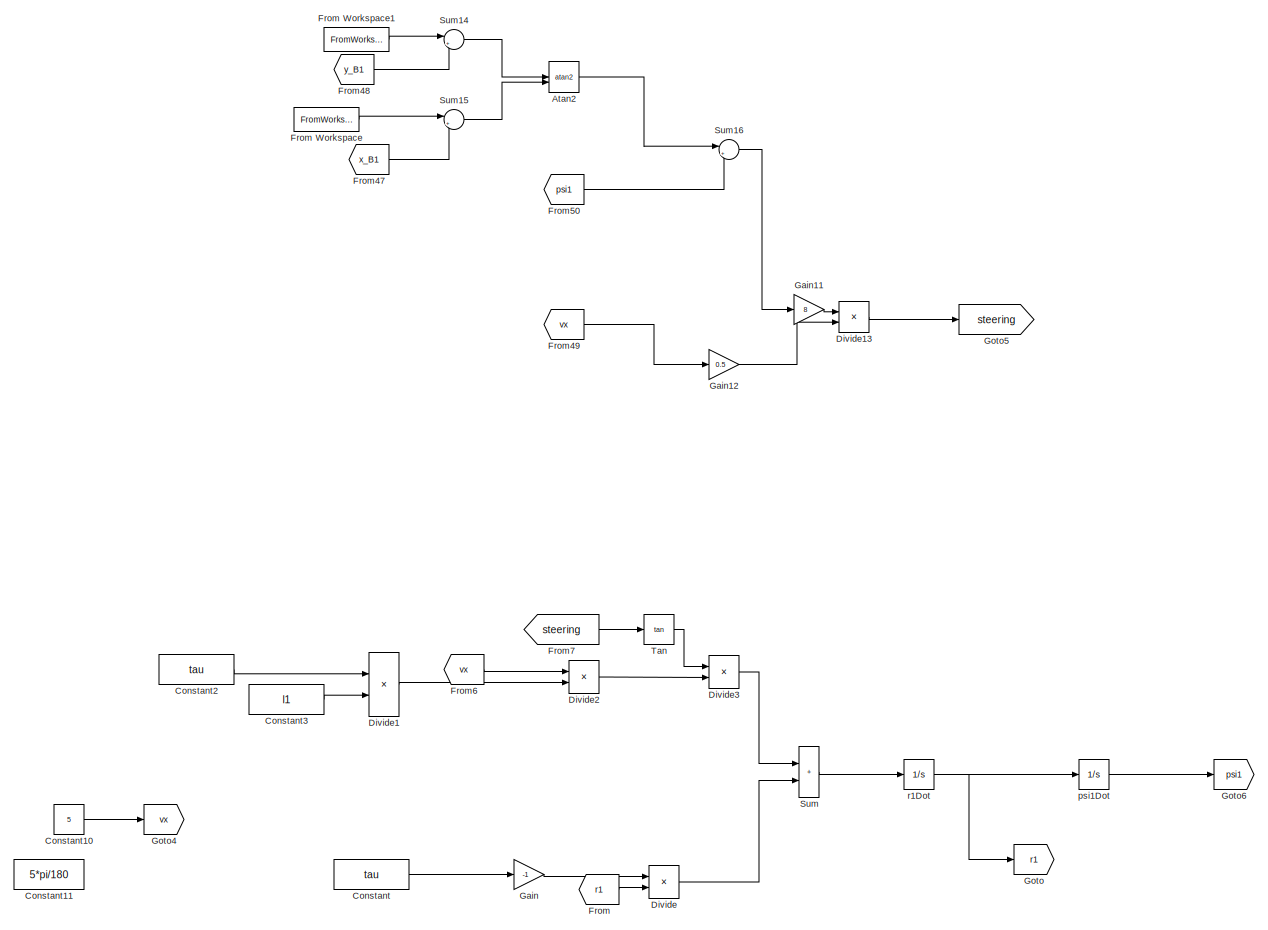
[diagram: root canvas - part 1/4, top left region]
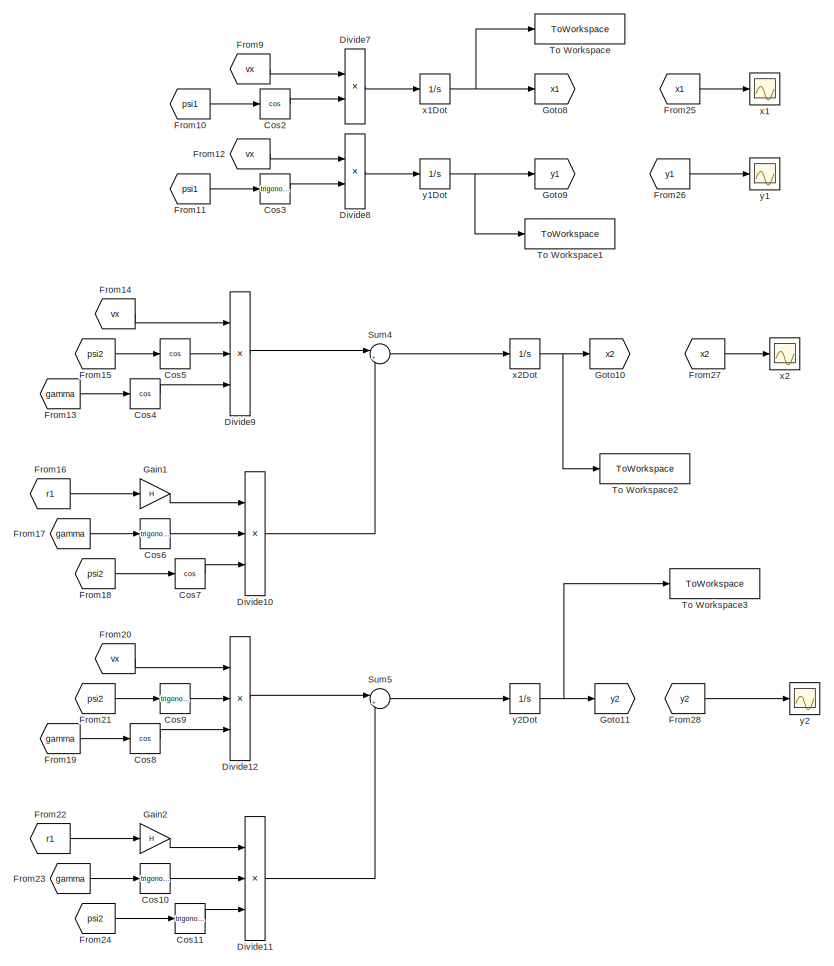
[diagram: root canvas - part 2/4, bottom center region]
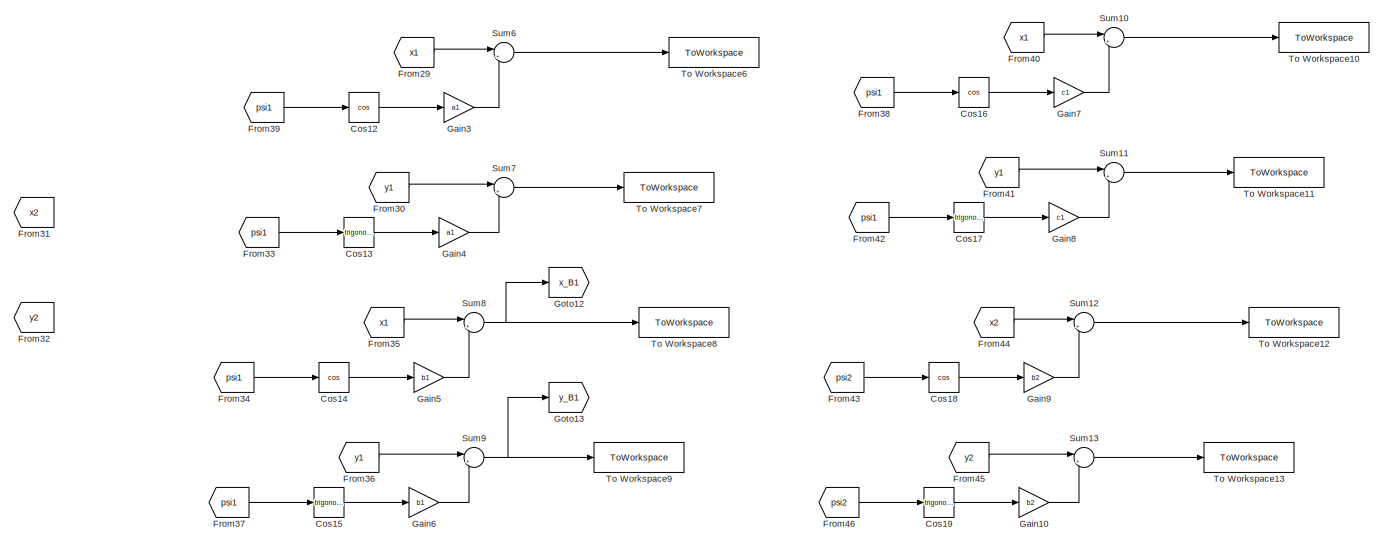
[diagram: root canvas - part 3/4, middle right region]
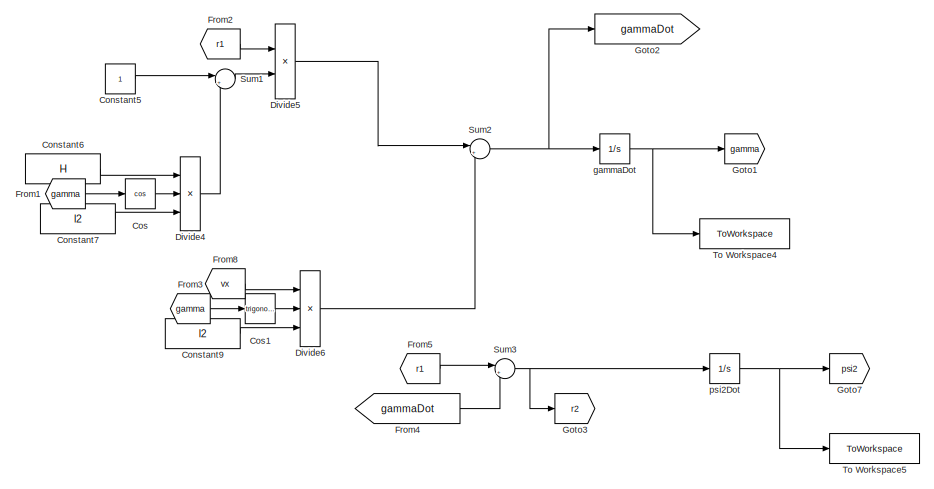
[diagram: root canvas - part 4/4, bottom left region]
MODEL slx_20f8e2907a4a
KIND model
CONFIG AbsTol = auto
CONFIG EnableMultiTasking = off
CONFIG FixedStep = 1/200
CONFIG MaxStep = auto
CONFIG MinStep = auto
CONFIG RelTol = 1e-3
CONFIG SampleTimeConstraint = Unconstrained
CONFIG SolverName = ode4
CONFIG StartTime = 0.0
CONFIG StopTime = 40
BLOCK [Trigonometry] Atan2
  Operator = atan2
BLOCK [Constant] Constant
  Value = tau
BLOCK [Constant] Constant10
  Value = 5
BLOCK [Constant] Constant11
  Value = 5*pi/180
BLOCK [Constant] Constant2
  Value = tau
BLOCK [Constant] Constant3
  Value = l1
BLOCK [Constant] Constant5
BLOCK [Constant] Constant6
  Value = H
BLOCK [Constant] Constant7
  Value = l2
BLOCK [Constant] Constant9
  Value = l2
BLOCK [Trigonometry] Cos
  Operator = cos
BLOCK [Trigonometry] Cos1
BLOCK [Trigonometry] Cos10
BLOCK [Trigonometry] Cos11
BLOCK [Trigonometry] Cos12
  Operator = cos
BLOCK [Trigonometry] Cos13
BLOCK [Trigonometry] Cos14
  Operator = cos
BLOCK [Trigonometry] Cos15
BLOCK [Trigonometry] Cos16
  Operator = cos
BLOCK [Trigonometry] Cos17
BLOCK [Trigonometry] Cos18
  Operator = cos
BLOCK [Trigonometry] Cos19
BLOCK [Trigonometry] Cos2
  Operator = cos
BLOCK [Trigonometry] Cos3
BLOCK [Trigonometry] Cos4
  Operator = cos
BLOCK [Trigonometry] Cos5
  Operator = cos
BLOCK [Trigonometry] Cos6
BLOCK [Trigonometry] Cos7
  Operator = cos
BLOCK [Trigonometry] Cos8
  Operator = cos
BLOCK [Trigonometry] Cos9
BLOCK [Product] Divide
  Inputs = /*
BLOCK [Product] Divide1
  Inputs = **
BLOCK [Product] Divide10
  Inputs = ***
BLOCK [Product] Divide11
  Inputs = ***
BLOCK [Product] Divide12
  Inputs = ***
BLOCK [Product] Divide13
  Inputs = */
BLOCK [Product] Divide2
  Inputs = */
BLOCK [Product] Divide3
  Inputs = **
BLOCK [Product] Divide4
  Inputs = **/
BLOCK [Product] Divide5
  Inputs = **
BLOCK [Product] Divide6
  Inputs = **/
BLOCK [Product] Divide7
  Inputs = **
BLOCK [Product] Divide8
  Inputs = **
BLOCK [Product] Divide9
  Inputs = ***
BLOCK [From] From
  GotoTag = r1
BLOCK [FromWorkspace] From Workspace
  VariableName = xSim
BLOCK [FromWorkspace] From Workspace1
  VariableName = ySim
BLOCK [From] From1
  GotoTag = gamma
BLOCK [From] From10
  GotoTag = psi1
BLOCK [From] From11
  GotoTag = psi1
BLOCK [From] From12
  GotoTag = vx
BLOCK [From] From13
  GotoTag = gamma
BLOCK [From] From14
  GotoTag = vx
BLOCK [From] From15
  GotoTag = psi2
BLOCK [From] From16
  GotoTag = r1
BLOCK [From] From17
  GotoTag = gamma
BLOCK [From] From18
  GotoTag = psi2
BLOCK [From] From19
  GotoTag = gamma
BLOCK [From] From2
  GotoTag = r1
BLOCK [From] From20
  GotoTag = vx
BLOCK [From] From21
  GotoTag = psi2
BLOCK [From] From22
  GotoTag = r1
BLOCK [From] From23
  GotoTag = gamma
BLOCK [From] From24
  GotoTag = psi2
BLOCK [From] From25
  GotoTag = x1
BLOCK [From] From26
  GotoTag = y1
BLOCK [From] From27
  GotoTag = x2
BLOCK [From] From28
  GotoTag = y2
BLOCK [From] From29
  GotoTag = x1
BLOCK [From] From3
  GotoTag = gamma
BLOCK [From] From30
  GotoTag = y1
BLOCK [From] From31
  GotoTag = x2
BLOCK [From] From32
  GotoTag = y2
BLOCK [From] From33
  GotoTag = psi1
BLOCK [From] From34
  GotoTag = psi1
BLOCK [From] From35
  GotoTag = x1
BLOCK [From] From36
  GotoTag = y1
BLOCK [From] From37
  GotoTag = psi1
BLOCK [From] From38
  GotoTag = psi1
BLOCK [From] From39
  GotoTag = psi1
BLOCK [From] From4
  GotoTag = gammaDot
BLOCK [From] From40
  GotoTag = x1
BLOCK [From] From41
  GotoTag = y1
BLOCK [From] From42
  GotoTag = psi1
BLOCK [From] From43
  GotoTag = psi2
BLOCK [From] From44
  GotoTag = x2
BLOCK [From] From45
  GotoTag = y2
BLOCK [From] From46
  GotoTag = psi2
BLOCK [From] From47
  GotoTag = x_B1
BLOCK [From] From48
  GotoTag = y_B1
BLOCK [From] From49
  GotoTag = vx
BLOCK [From] From5
  GotoTag = r1
BLOCK [From] From50
  GotoTag = psi1
BLOCK [From] From6
  GotoTag = vx
BLOCK [From] From7
  GotoTag = steering
BLOCK [From] From8
  GotoTag = vx
BLOCK [From] From9
  GotoTag = vx
BLOCK [Gain] Gain
  Gain = -1
BLOCK [Gain] Gain1
  Gain = H
BLOCK [Gain] Gain10
  Gain = b2
BLOCK [Gain] Gain11
  Gain = 8
BLOCK [Gain] Gain12
  Gain = 0.5
BLOCK [Gain] Gain2
  Gain = H
BLOCK [Gain] Gain3
  Gain = a1
BLOCK [Gain] Gain4
  Gain = a1
BLOCK [Gain] Gain5
  Gain = b1
BLOCK [Gain] Gain6
  Gain = b1
BLOCK [Gain] Gain7
  Gain = c1
BLOCK [Gain] Gain8
  Gain = c1
BLOCK [Gain] Gain9
  Gain = b2
BLOCK [Goto] Goto
  GotoTag = r1
BLOCK [Goto] Goto1
  GotoTag = gamma
BLOCK [Goto] Goto10
  GotoTag = x2
BLOCK [Goto] Goto11
  GotoTag = y2
BLOCK [Goto] Goto12
  GotoTag = x_B1
BLOCK [Goto] Goto13
  GotoTag = y_B1
BLOCK [Goto] Goto2
  GotoTag = gammaDot
BLOCK [Goto] Goto3
  GotoTag = r2
BLOCK [Goto] Goto4
  GotoTag = vx
BLOCK [Goto] Goto5
  GotoTag = steering
BLOCK [Goto] Goto6
  GotoTag = psi1
BLOCK [Goto] Goto7
  GotoTag = psi2
BLOCK [Goto] Goto8
  GotoTag = x1
BLOCK [Goto] Goto9
  GotoTag = y1
BLOCK [Sum] Sum
  IconShape = rectangular
BLOCK [Sum] Sum1
  Inputs = |+-
BLOCK [Sum] Sum10
  Inputs = |+-
BLOCK [Sum] Sum11
  Inputs = |+-
BLOCK [Sum] Sum12
  Inputs = |+-
BLOCK [Sum] Sum13
  Inputs = |+-
BLOCK [Sum] Sum14
  Inputs = |+-
BLOCK [Sum] Sum15
  Inputs = |+-
BLOCK [Sum] Sum16
  Inputs = |+-
BLOCK [Sum] Sum2
  Inputs = |+-
BLOCK [Sum] Sum3
  Inputs = |+-
BLOCK [Sum] Sum4
  Inputs = |+-
BLOCK [Sum] Sum5
  Inputs = |+-
BLOCK [Sum] Sum6
  Inputs = |++
BLOCK [Sum] Sum7
  Inputs = |++
BLOCK [Sum] Sum8
  Inputs = |+-
BLOCK [Sum] Sum9
  Inputs = |+-
BLOCK [Trigonometry] Tan
  Operator = tan
BLOCK [ToWorkspace] To Workspace
  FixptAsFi = on
  MaxDataPoints = inf
  SampleTime = -1
  VariableName = x1
BLOCK [ToWorkspace] To Workspace1
  FixptAsFi = on
  MaxDataPoints = inf
  SampleTime = -1
  VariableName = y1
BLOCK [ToWorkspace] To Workspace10
  FixptAsFi = on
  MaxDataPoints = inf
  SampleTime = -1
  VariableName = x_a2
BLOCK [ToWorkspace] To Workspace11
  FixptAsFi = on
  MaxDataPoints = inf
  SampleTime = -1
  VariableName = y_a2
BLOCK [ToWorkspace] To Workspace12
  FixptAsFi = on
  MaxDataPoints = inf
  SampleTime = -1
  VariableName = x_b2
BLOCK [ToWorkspace] To Workspace13
  FixptAsFi = on
  MaxDataPoints = inf
  SampleTime = -1
  VariableName = y_b2
BLOCK [ToWorkspace] To Workspace2
  FixptAsFi = on
  MaxDataPoints = inf
  SampleTime = -1
  VariableName = x2
BLOCK [ToWorkspace] To Workspace3
  FixptAsFi = on
  MaxDataPoints = inf
  SampleTime = -1
  VariableName = y2
BLOCK [ToWorkspace] To Workspace4
  FixptAsFi = on
  MaxDataPoints = inf
  SampleTime = -1
  SaveFormat = Timeseries
  VariableName = psi1
BLOCK [ToWorkspace] To Workspace5
  FixptAsFi = on
  MaxDataPoints = inf
  SampleTime = -1
  SaveFormat = Timeseries
  VariableName = psi2
BLOCK [ToWorkspace] To Workspace6
  FixptAsFi = on
  MaxDataPoints = inf
  SampleTime = -1
  VariableName = x_a1
BLOCK [ToWorkspace] To Workspace7
  FixptAsFi = on
  MaxDataPoints = inf
  SampleTime = -1
  VariableName = y_a1
BLOCK [ToWorkspace] To Workspace8
  FixptAsFi = on
  MaxDataPoints = inf
  SampleTime = -1
  VariableName = x_b1
BLOCK [ToWorkspace] To Workspace9
  FixptAsFi = on
  MaxDataPoints = inf
  SampleTime = -1
  VariableName = y_b1
BLOCK [Integrator] gammaDot
BLOCK [Integrator] psi1Dot
BLOCK [Integrator] psi2Dot
BLOCK [Integrator] r1Dot
BLOCK [Scope] x1
  Floating = off
  NumInputPorts = 1
  ScopeSpecificationString = Simulink.scopes.TimeScopeBlockCfg('CurrentConfiguration', extmgr.ConfigurationSet(extmgr.Configuration('Core','General UI',true),extmgr.Configuration('Core','Source UI',true),extmgr.Configuration('Sources','WiredSimulink',true),extmgr.Configuration('Visuals','Time Domain',true,'SerializedDisplays',{struct('MinYLimReal','-24.62003','MaxYLimReal','221.58028','YLabelReal','','MinYLimMag','0.00000','M...<+1547ch>
BLOCK [Integrator] x1Dot
BLOCK [Scope] x2
  Floating = off
  NumInputPorts = 1
  ScopeSpecificationString = Simulink.scopes.TimeScopeBlockCfg('CurrentConfiguration', extmgr.ConfigurationSet(extmgr.Configuration('Core','General UI',true),extmgr.Configuration('Core','Source UI',true),extmgr.Configuration('Sources','WiredSimulink',true,'DataLoggingVariableName','ScopeData2'),extmgr.Configuration('Visuals','Time Domain',true,'SerializedDisplays',{struct('MinYLimReal','-28.62003','MaxYLimReal','217.58028','Y...<+1586ch>
BLOCK [Integrator] x2Dot
  InitialCondition = -c1-a2
BLOCK [Scope] y1
  Floating = off
  NumInputPorts = 1
  ScopeSpecificationString = Simulink.scopes.TimeScopeBlockCfg('CurrentConfiguration', extmgr.ConfigurationSet(extmgr.Configuration('Core','General UI',true),extmgr.Configuration('Core','Source UI',true),extmgr.Configuration('Sources','WiredSimulink',true,'DataLoggingVariableName','ScopeData1'),extmgr.Configuration('Visuals','Time Domain',true,'SerializedDisplays',{struct('MinYLimReal','-0.99527','MaxYLimReal','4.53896','YLab...<+1578ch>
BLOCK [Integrator] y1Dot
BLOCK [Scope] y2
  Floating = off
  NumInputPorts = 1
  ScopeSpecificationString = Simulink.scopes.TimeScopeBlockCfg('CurrentConfiguration', extmgr.ConfigurationSet(extmgr.Configuration('Core','General UI',true),extmgr.Configuration('Core','Source UI',true),extmgr.Configuration('Sources','WiredSimulink',true,'DataLoggingVariableName','ScopeData3'),extmgr.Configuration('Visuals','Time Domain',true,'SerializedDisplays',{struct('MinYLimReal','-0.37121','MaxYLimReal','3.34091','YLab...<+1574ch>
BLOCK [Integrator] y2Dot
LINE Atan2:1 -> Sum16:1
LINE Constant10:1 -> Goto4:1
LINE Constant2:1 -> Divide1:1
LINE Constant3:1 -> Divide1:2
LINE Constant5:1 -> Sum1:1
LINE Constant6:1 -> Divide4:1
LINE Constant7:1 -> Divide4:3
LINE Constant9:1 -> Divide6:3
LINE Constant:1 -> Gain:1
LINE Cos10:1 -> Divide11:2
LINE Cos11:1 -> Divide11:3
LINE Cos12:1 -> Gain3:1
LINE Cos13:1 -> Gain4:1
LINE Cos14:1 -> Gain5:1
LINE Cos15:1 -> Gain6:1
LINE Cos16:1 -> Gain7:1
LINE Cos17:1 -> Gain8:1
LINE Cos18:1 -> Gain9:1
LINE Cos19:1 -> Gain10:1
LINE Cos1:1 -> Divide6:2
LINE Cos2:1 -> Divide7:2
LINE Cos3:1 -> Divide8:2
LINE Cos4:1 -> Divide9:3
LINE Cos5:1 -> Divide9:2
LINE Cos6:1 -> Divide10:2
LINE Cos7:1 -> Divide10:3
LINE Cos8:1 -> Divide12:3
LINE Cos9:1 -> Divide12:2
LINE Cos:1 -> Divide4:2
LINE Divide10:1 -> Sum4:2
LINE Divide11:1 -> Sum5:2
LINE Divide12:1 -> Sum5:1
LINE Divide13:1 -> Goto5:1
LINE Divide1:1 -> Divide2:2
LINE Divide2:1 -> Divide3:2
LINE Divide3:1 -> Sum:1
LINE Divide4:1 -> Sum1:2
LINE Divide5:1 -> Sum2:1
LINE Divide6:1 -> Sum2:2
LINE Divide7:1 -> x1Dot:1
LINE Divide8:1 -> y1Dot:1
LINE Divide9:1 -> Sum4:1
LINE Divide:1 -> Sum:2
LINE From Workspace1:1 -> Sum14:1
LINE From Workspace:1 -> Sum15:1
LINE From10:1 -> Cos2:1
LINE From11:1 -> Cos3:1
LINE From12:1 -> Divide8:1
LINE From13:1 -> Cos4:1
LINE From14:1 -> Divide9:1
LINE From15:1 -> Cos5:1
LINE From16:1 -> Gain1:1
LINE From17:1 -> Cos6:1
LINE From18:1 -> Cos7:1
LINE From19:1 -> Cos8:1
LINE From1:1 -> Cos:1
LINE From20:1 -> Divide12:1
LINE From21:1 -> Cos9:1
LINE From22:1 -> Gain2:1
LINE From23:1 -> Cos10:1
LINE From24:1 -> Cos11:1
LINE From25:1 -> x1:1
LINE From26:1 -> y1:1
LINE From27:1 -> x2:1
LINE From28:1 -> y2:1
LINE From29:1 -> Sum6:1
LINE From2:1 -> Divide5:1
LINE From30:1 -> Sum7:1
LINE From33:1 -> Cos13:1
LINE From34:1 -> Cos14:1
LINE From35:1 -> Sum8:1
LINE From36:1 -> Sum9:1
LINE From37:1 -> Cos15:1
LINE From38:1 -> Cos16:1
LINE From39:1 -> Cos12:1
LINE From3:1 -> Cos1:1
LINE From40:1 -> Sum10:1
LINE From41:1 -> Sum11:1
LINE From42:1 -> Cos17:1
LINE From43:1 -> Cos18:1
LINE From44:1 -> Sum12:1
LINE From45:1 -> Sum13:1
LINE From46:1 -> Cos19:1
LINE From47:1 -> Sum15:2
LINE From48:1 -> Sum14:2
LINE From49:1 -> Gain12:1
LINE From4:1 -> Sum3:2
LINE From50:1 -> Sum16:2
LINE From5:1 -> Sum3:1
LINE From6:1 -> Divide2:1
LINE From7:1 -> Tan:1
LINE From8:1 -> Divide6:1
LINE From9:1 -> Divide7:1
LINE From:1 -> Divide:2
LINE Gain10:1 -> Sum13:2
LINE Gain11:1 -> Divide13:1
LINE Gain12:1 -> Divide13:2
LINE Gain1:1 -> Divide10:1
LINE Gain2:1 -> Divide11:1
LINE Gain3:1 -> Sum6:2
LINE Gain4:1 -> Sum7:2
LINE Gain5:1 -> Sum8:2
LINE Gain6:1 -> Sum9:2
LINE Gain7:1 -> Sum10:2
LINE Gain8:1 -> Sum11:2
LINE Gain9:1 -> Sum12:2
LINE Gain:1 -> Divide:1
LINE Sum10:1 -> To Workspace10:1
LINE Sum11:1 -> To Workspace11:1
LINE Sum12:1 -> To Workspace12:1
LINE Sum13:1 -> To Workspace13:1
LINE Sum14:1 -> Atan2:1
LINE Sum15:1 -> Atan2:2
LINE Sum16:1 -> Gain11:1
LINE Sum1:1 -> Divide5:2
NET Sum2:1 -> Goto2:1, gammaDot:1
NET Sum3:1 -> Goto3:1, psi2Dot:1
LINE Sum4:1 -> x2Dot:1
LINE Sum5:1 -> y2Dot:1
LINE Sum6:1 -> To Workspace6:1
LINE Sum7:1 -> To Workspace7:1
NET Sum8:1 -> Goto12:1, To Workspace8:1
NET Sum9:1 -> Goto13:1, To Workspace9:1
LINE Sum:1 -> r1Dot:1
LINE Tan:1 -> Divide3:1
NET gammaDot:1 -> Goto1:1, To Workspace4:1
LINE psi1Dot:1 -> Goto6:1
NET psi2Dot:1 -> Goto7:1, To Workspace5:1
NET r1Dot:1 -> Goto:1, psi1Dot:1
NET x1Dot:1 -> Goto8:1, To Workspace:1
NET x2Dot:1 -> Goto10:1, To Workspace2:1
NET y1Dot:1 -> Goto9:1, To Workspace1:1
NET y2Dot:1 -> Goto11:1, To Workspace3:1
note: NET lines group one-source signal fan-out (src -> all destinations, sorted); 1:1 wires keep LINE
